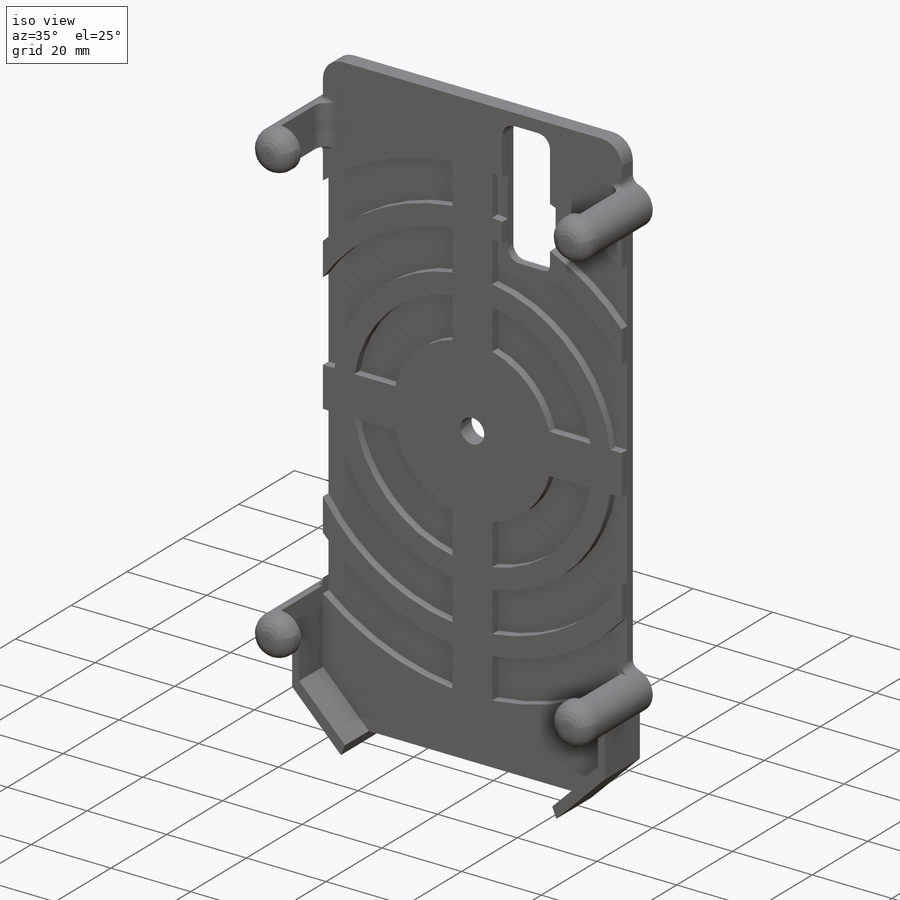
[diagram: iso view]
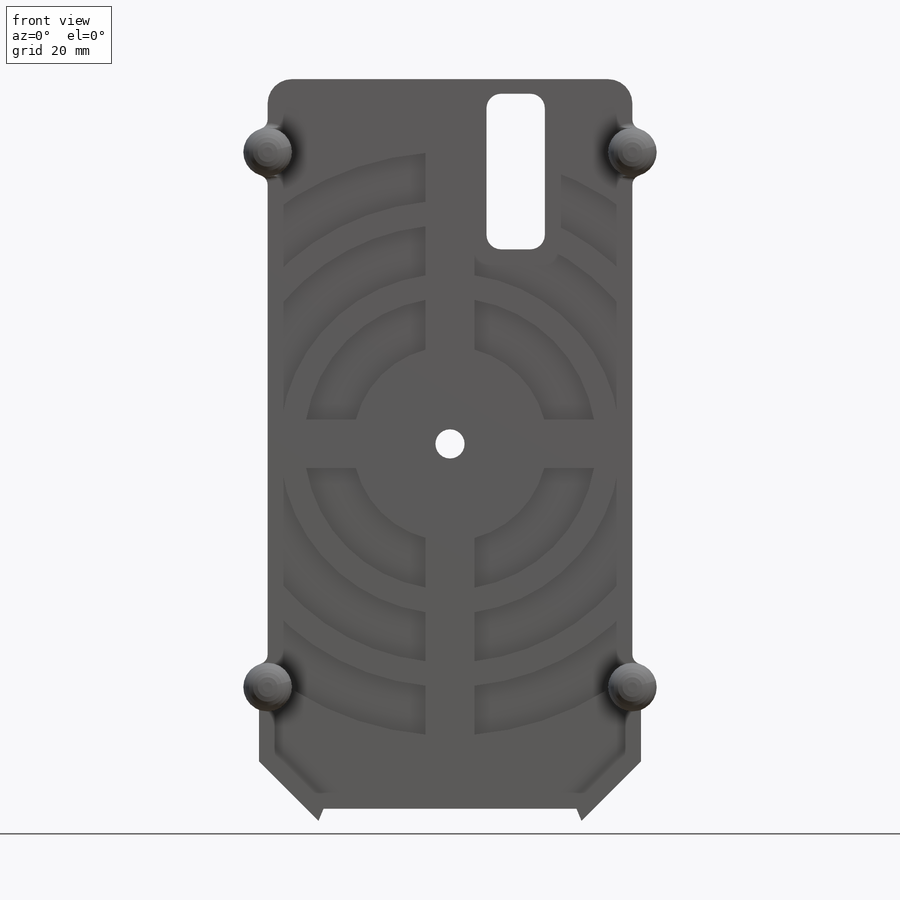
[diagram: front view]
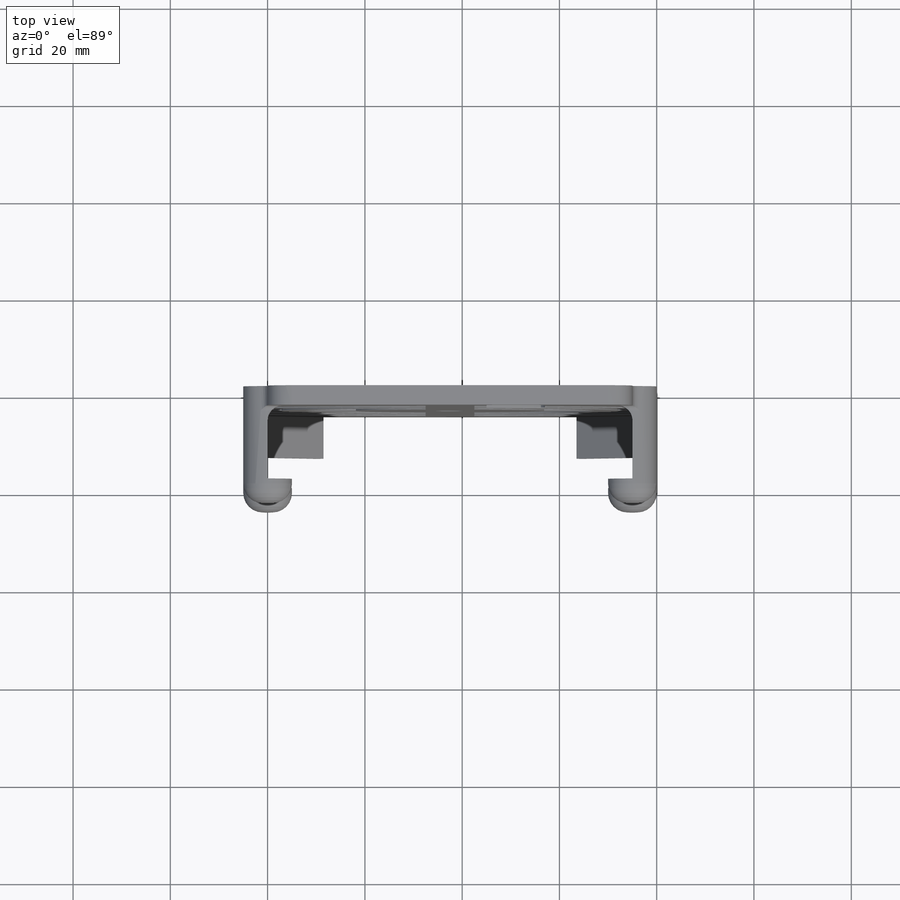
[diagram: top view]
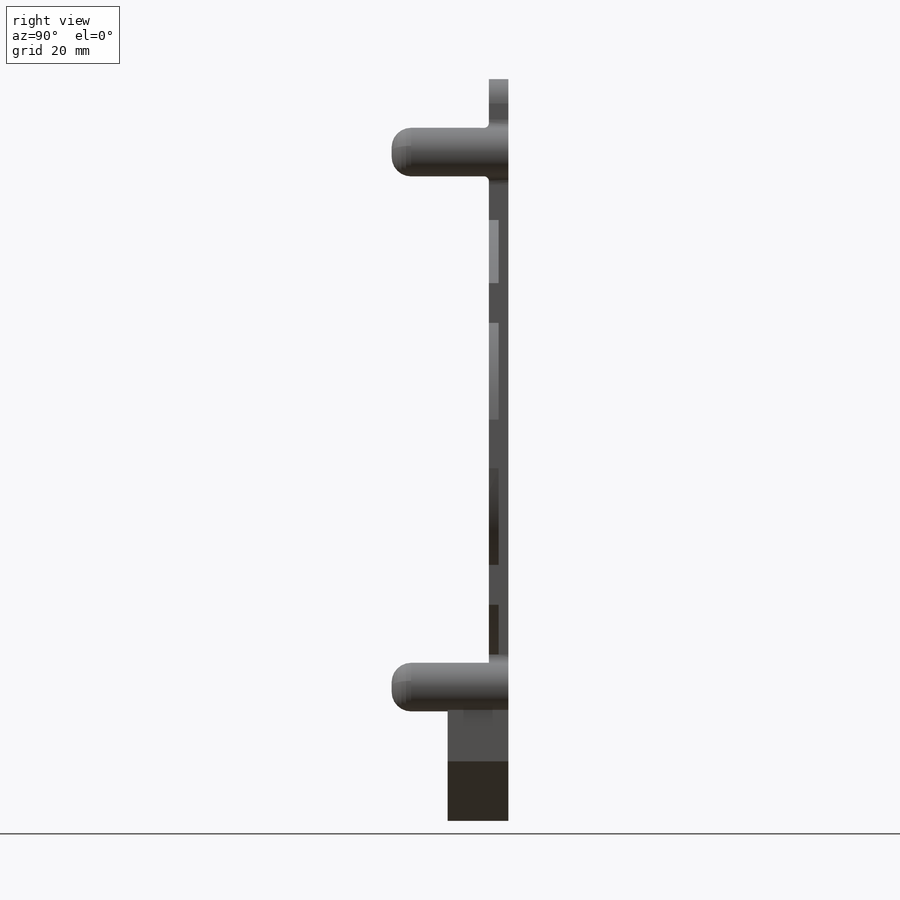
[diagram: right view]
SOLIDWORKS PART (.sldprt)
format: sldprt  version: not decoded by parser v0  size: 509,952 bytes
history: native  units: mm
features: sketch x7, fillet x5, cut_extrude x4, extrude x3, plane x3, material x1 (+13 scaffold rows collapsed)
feature tree (36):
  scaffold x13  (default folders/planes/origin — collapsed)
  material  "Material <not specified>"
  sketch  "Sketch1"  dims[c1.D5=10.0mm c1.D7=10.0mm c1.D1=75.0mm c1.D2=150.0mm c1.D3=26.0mm c1.D4=26.0mm c2.D5=15.0mm c2.D6=0.0mm c3.D5=25.0mm c3.D6=25.0mm c3.D7=15.0mm c3.D2=130.0mm c3.D1=2.5mm]
  extrude  "Boss-Extrude1"  Depth=4mm
  extrude  "Boss-Extrude2"  [1 undecoded]
  sketch  "Sketch1<3>"  dims[D1=24.0mm]
  extrude  "Boss-Extrude3"  [1 undecoded]
  sketch  "Sketch1<4>"  dims[D1=12.5mm]
  plane  "Plane1"  Offset=0mm
  sketch  "Sketch2"  dims[D1=15.0mm D2=75.0mm]
  cut_extrude  "Cut-Extrude1"  Depth=130mm
  fillet  "Fillet1"  Radius=4mm
  fillet  "Fillet2"  Radius=5mm
  fillet  "Fillet3"  Radius=2mm
  plane  "Plane2"  Offset=0mm
  sketch  "Sketch3"  dims[c1.D5=3.0mm c1.D1=18.0mm c1.D2=30.0mm c1.D3=35.0mm c1.D4=3.0mm c2.D2=12.0mm c2.D1=18.0mm]
  cut_extrude  "Cut-Extrude3"  [1 undecoded]
  plane  "Plane3"  Offset=0mm
  sketch  "Sketch5"  dims[c1.D6=~69.637731mm c1.D1=75.0mm c1.D2=37.5mm c1.D3=10.0mm c1.D4=10.0mm c1.D5=5.0mm c2.D6=37.5mm c2.D7=37.5mm c2.D1=5.0mm]
  cut_extrude  "Cut-Extrude4"  Depth=2mm
  sketch  "Sketch6"  dims[c1.D3=~15.974463mm c1.D1=37.5mm c1.D2=~0.615307mm c2.D3=~0.307654mm c2.D2=75.0mm c3.D3=75.0mm]
  cut_extrude  "Cut-Extrude5"  [1 undecoded]
  fillet  "Fillet4"  Radius=3mm
  fillet  "Fillet5"  Radius=1mm
decode coverage: 15 of 19 modeling features carry decoded parameters
note: ~ marks probable driven/reference dimensions
note: 4 parameter values undecoded
summary: no parameter record found for 4 features
note: suppression state not decoded; provenance and decode notes live in map.json
